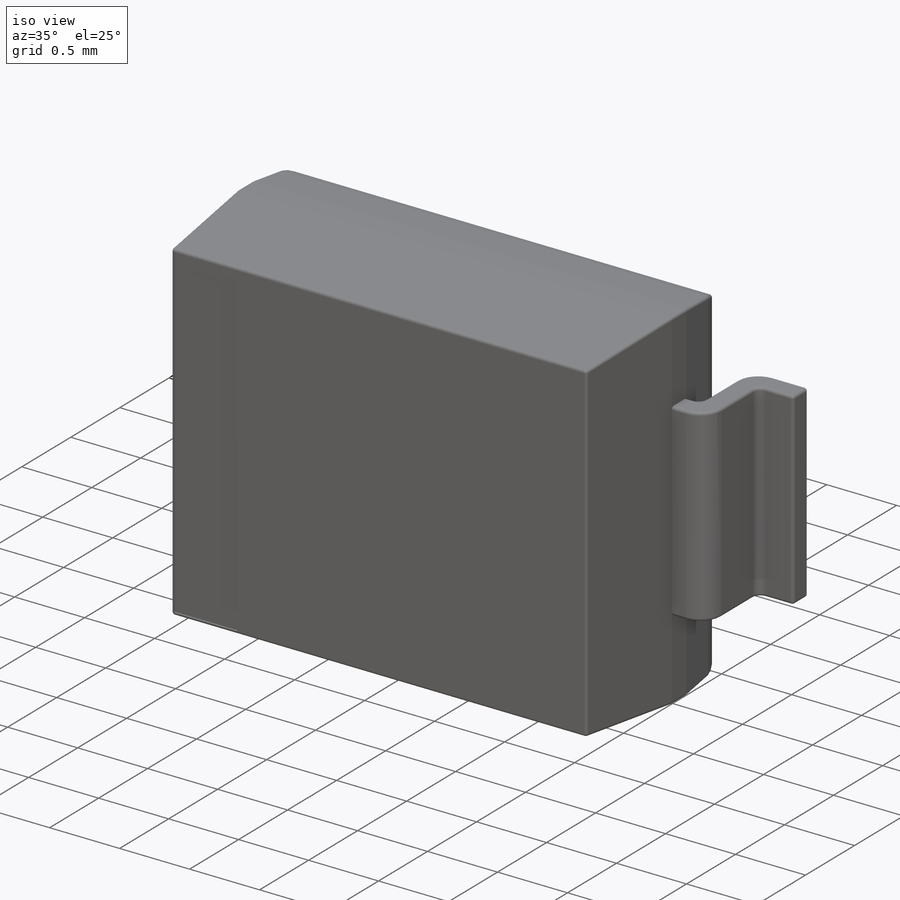
[diagram: iso view]
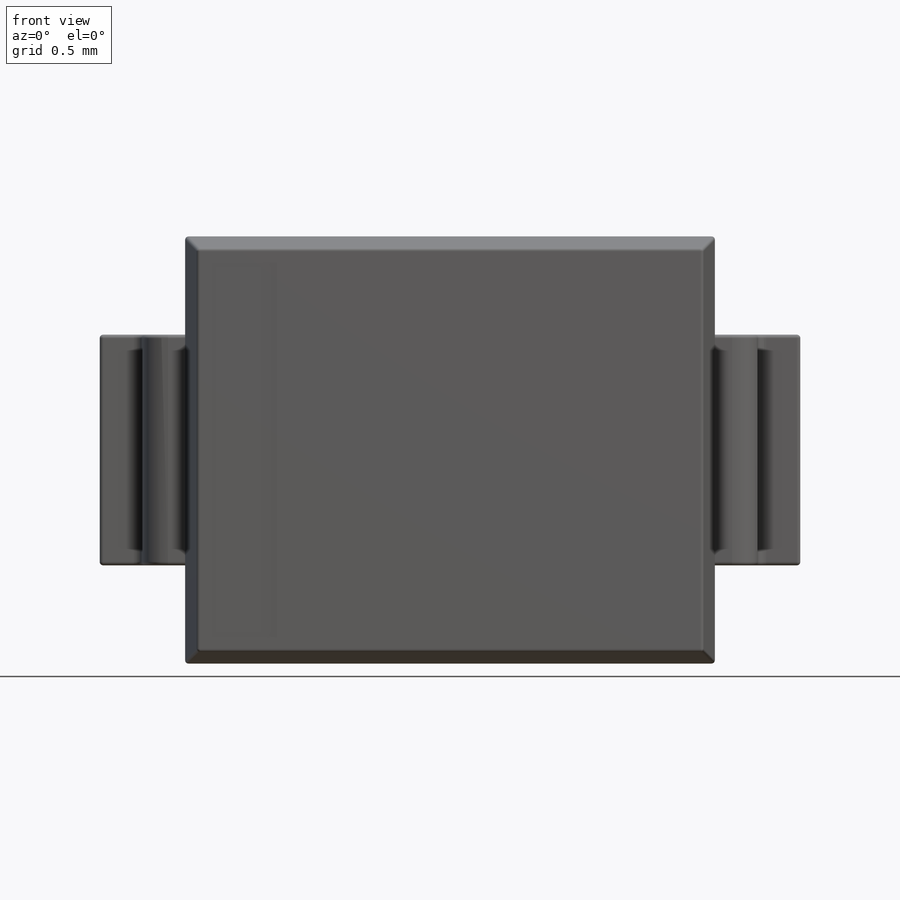
[diagram: front view]
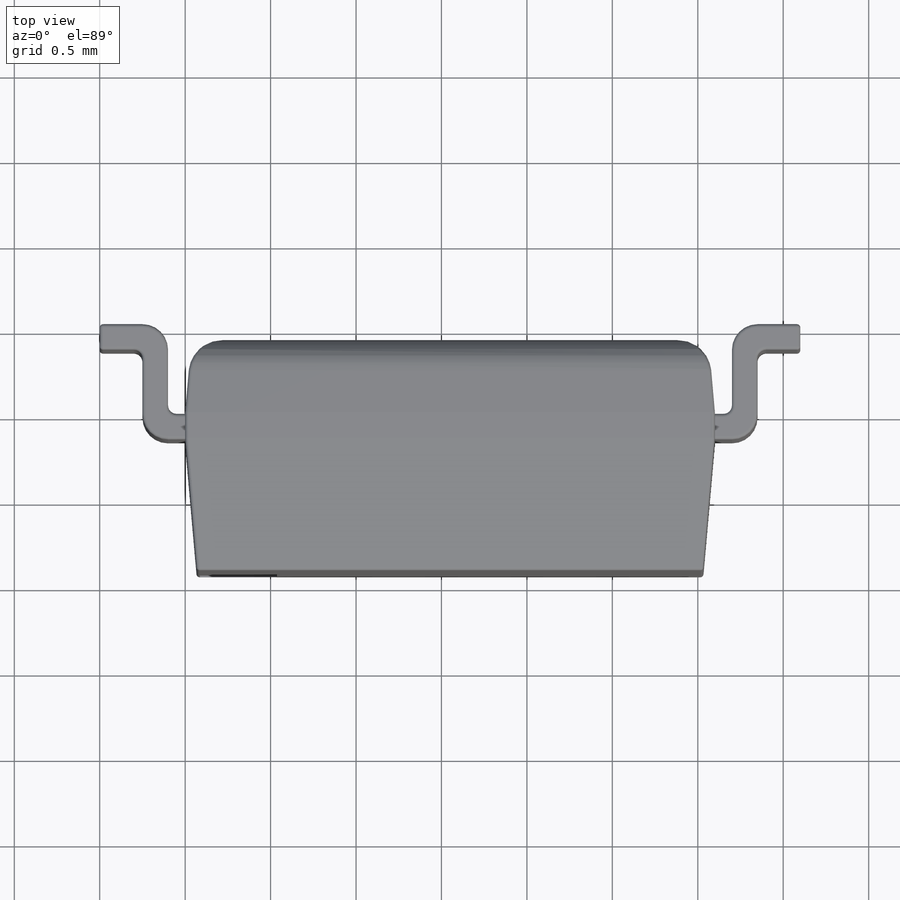
[diagram: top view]
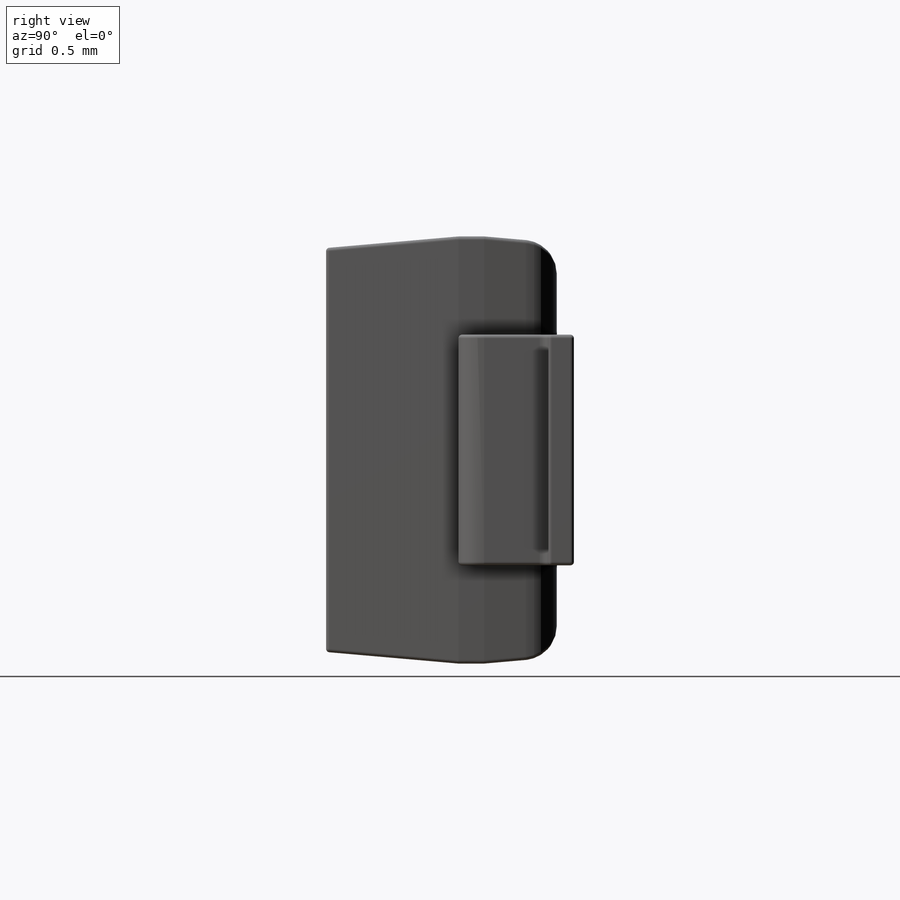
[diagram: right view]
SOLIDWORKS PART (.sldprt)
format: sldprt  version: not decoded by parser v0  size: 465,408 bytes
history: native  units: mm
features: sketch x8, extrude x7, fillet x5, chamfer x2, material x1, cut_extrude x1 (+12 scaffold rows collapsed)
feature tree (36):
  scaffold x12  (default folders/planes/origin — collapsed)
  material  "Material <not specified>"
  sketch  "Sketch1"  dims[D1=2.5mm D2=3.1mm]
  extrude  "Boss-Extrude1"  Depth=0.15mm
  sketch  "Sketch2"
  extrude  "Boss-Extrude2"  Depth=0.775mm
  chamfer  "Chamfer1"  Distance=0.775mm Angle=5deg
  sketch  "Sketch4"
  extrude  "Boss-Extrude3"  Depth=0.425mm
  chamfer  "Chamfer2"  Distance=0.425mm Angle=5deg
  sketch  "Sketch5"  dims[D1=0.575mm D2=0.575mm]
  extrude  "Boss-Extrude4"  Depth=0.1mm
  sketch  "Sketch6"  dims[D1=0.4mm D2=0.15mm D3=0.25mm D4=0.525mm]
  extrude  "Boss-Extrude5"  [1 undecoded]
  sketch  "Sketch7"  dims[D1=0.575mm D2=0.575mm]
  extrude  "Boss-Extrude6"  Depth=0.1mm
  sketch  "Sketch8"  dims[D1=0.4mm D2=0.15mm D3=0.25mm D4=0.525mm]
  extrude  "Boss-Extrude7"  [1 undecoded]
  fillet  "Fillet2"  Radius=0.05mm
  fillet  "Fillet4"  Radius=0.15mm
  fillet  "Fillet5"  Radius=0.2mm
  fillet  "Fillet6"  Radius=0.02mm
  fillet  "Fillet7"  Radius=0.02mm
  sketch  "Sketch10"  dims[D1=0.45mm]
  cut_extrude  "Cut-Extrude2"  Depth=0.01mm
decode coverage: 19 of 23 modeling features carry decoded parameters
note: 2 parameter values undecoded
note: suppression state not decoded; provenance and decode notes live in map.json
